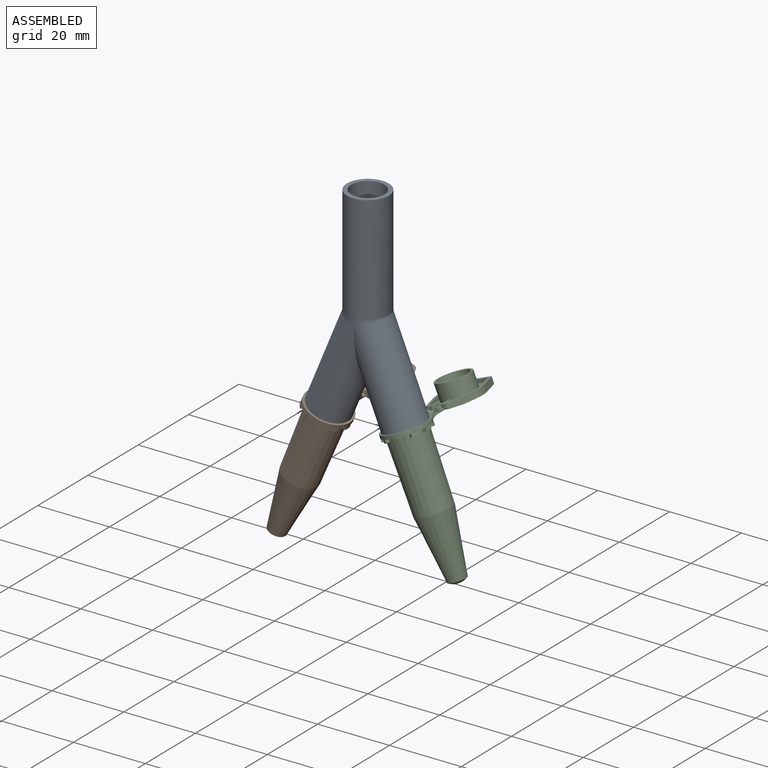
[diagram: assembled view]
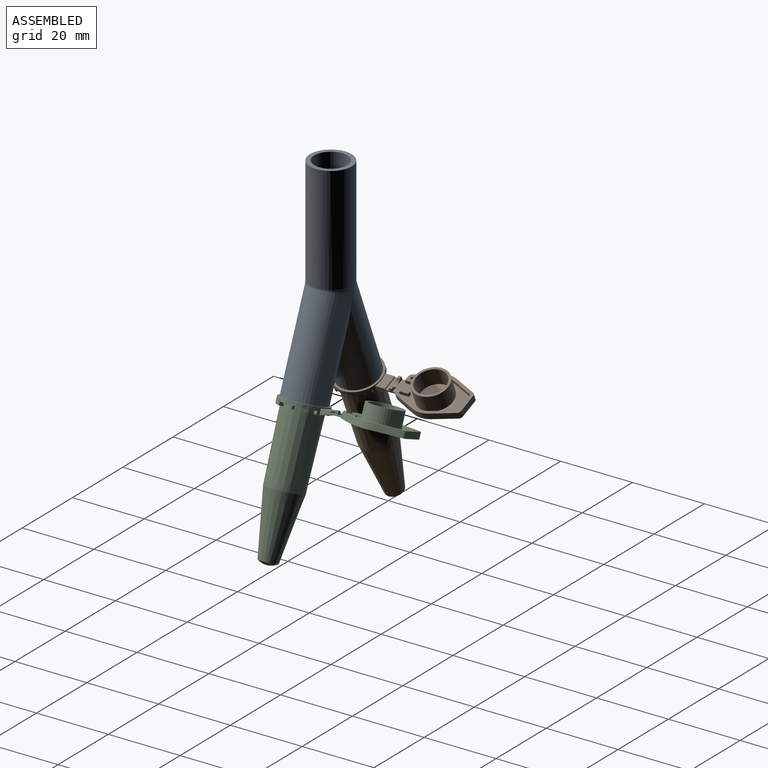
[diagram: assembled view, second angle]
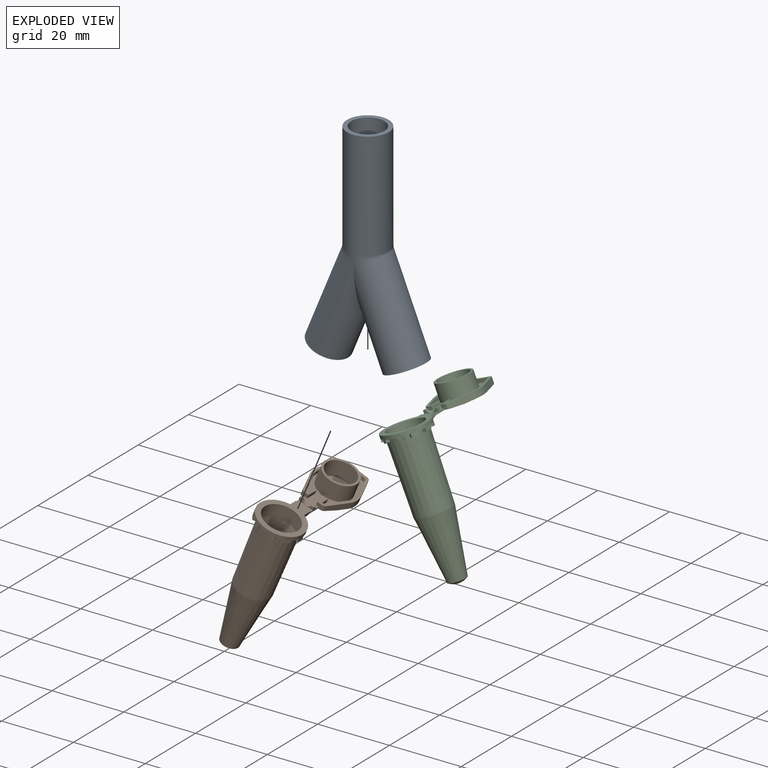
[diagram: exploded view]
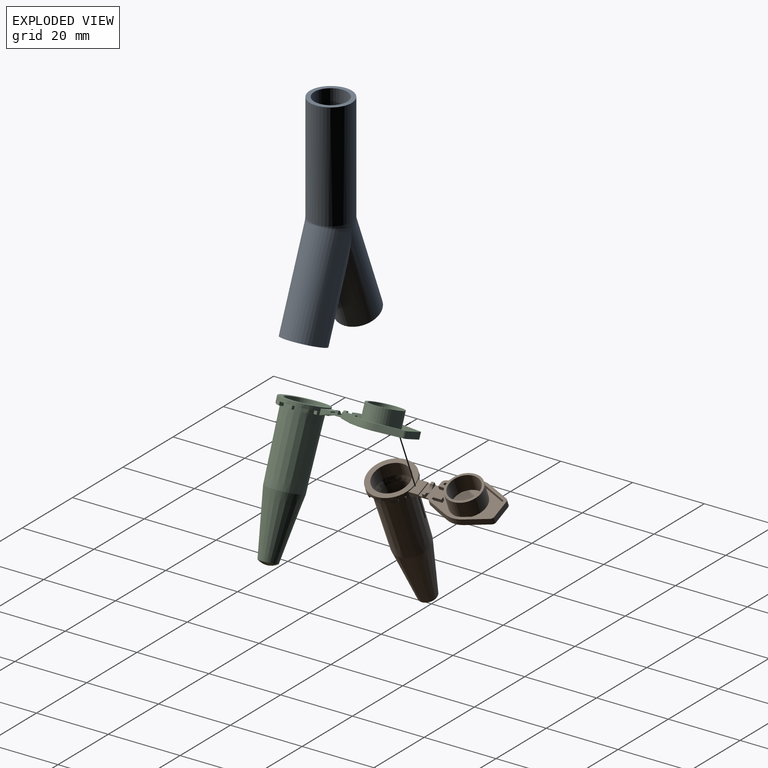
[diagram: exploded view, second angle]
ASSEMBLY  parts=3 mates=2
PART A: 21 faces, bbox 32.5x11.6x59.8 mm
  f0: sphere r=6.99mm, area 71.7mm2, adj f2,f20
  f1: sphere r=4.65mm, area 116.3mm2, adj f16,f20
  f2: cylinder r=4.62mm len=15.61mm, axis (-0.38,0,-0.92), area 379.5mm2, adj f0,f13
  f3: sphere r=6.99mm, area 71.7mm2, adj f5,f19
  f4: sphere r=4.65mm, area 116.3mm2, adj f7,f19
  f5: cylinder r=4.62mm len=15.61mm, axis (0.38,0,-0.92), area 379.5mm2, adj f3,f9
  f6: cylinder r=4.62mm len=30mm, axis (0,0,-1), area 870.8mm2, adj f8,f17,f18
  f7: cylinder r=4.62mm len=12.62mm, axis (0.38,0,-0.92), area 200.9mm2, adj f4,f16,f18
  f8: plane 11.64x11.64mm, normal (0,0,1), area 39.4mm2, adj f6,f10
  f9: plane 11.64x10.75mm, normal (0.38,0,-0.92), area 39.4mm2, adj f5,f12
  f10: cylinder r=5.82mm len=30mm, axis (0,0,-1), area 1097mm2, adj f8,f11,f15
  f11: torus R=6.62mm, axis (0,-1,0), area 21.9mm2, adj f10,f12,f15
  f12: cylinder r=5.82mm len=29.45mm, axis (0.38,0,-0.92), area 849.3mm2, adj f9,f11,f14
  f13: plane 11.64x10.75mm, normal (-0.38,0,-0.92), area 39.4mm2, adj f2,f14
  f14: cylinder r=5.82mm len=29.45mm, axis (-0.38,0,-0.92), area 849.3mm2, adj f12,f13,f15
  f15: torus R=6.62mm, axis (0,1,0), area 21.9mm2, adj f10,f11,f14
  f16: cylinder r=4.62mm len=12.62mm, axis (-0.38,0,-0.92), area 200.9mm2, adj f1,f7,f17
  f17: torus R=6.62mm, axis (0,1,0), area 21.9mm2, adj f6,f16,f18
  f18: torus R=6.62mm, axis (0,-1,0), area 21.9mm2, adj f6,f7,f17
  f19: cylinder r=1.24mm len=2.98mm, axis (-0.38,0,0.92), area 14mm2, adj f3,f4
  f20: cylinder r=1.24mm len=2.98mm, axis (0.38,0,0.92), area 14mm2, adj f0,f1
PART B: 116 faces, bbox 36.9x12.8x42.8 mm
  f0: plane 18.87x11.1mm, normal (0,0,1), area 74.1mm2, adj f1,f3,f65,f66,f75,f78,f93,f96
  f1: plane 1.4x1.25mm, normal (-1,0,0), area 1.4mm2, adj f0,f65,f87,f91,f114,f115
  f2: plane 0.82x0.78mm, normal (0,0,1), area 0.6mm2, adj f3,f65,f76,f77
  f3: plane 2.15x0.9mm, normal (1,0,0), area 1mm2, adj f0,f2,f65,f77
  f4: plane 2.15x0.9mm, normal (-1,0,0), area 1mm2, adj f66,f67,f74,f77
  f5: plane 7x4.3mm, normal (0,0,-1), area 23.5mm2, adj f17,f18,f51,f57,f65,f66,f70,f71
  f6: plane 1.96x1.52mm, normal (0,0,-1), area 1.9mm2, adj f17,f18,f27,f59
  f7: plane 2x1.85mm, normal (0,0,-1), area 1.9mm2, adj f17,f18,f55,f61
  f8: plane 2x1.85mm, normal (0,0,-1), area 1.9mm2, adj f17,f18,f47,f53
  f9: plane 1.96x1.52mm, normal (0,0,-1), area 1.9mm2, adj f17,f18,f43,f49
  f10: plane 1.96x1.52mm, normal (0,0,-1), area 1.9mm2, adj f17,f18,f39,f45
  f11: plane 2x1.85mm, normal (0,0,-1), area 1.9mm2, adj f17,f18,f36,f41
  f12: plane 3.8x1.32mm, normal (0,0,-1), area 3.8mm2, adj f17,f18,f63,f64
  f13: plane 2x1.85mm, normal (0,0,-1), area 1.9mm2, adj f17,f18,f29,f34
  f14: plane 1.96x1.52mm, normal (0,0,-1), area 1.9mm2, adj f17,f18,f25,f31
  f15: sphere r=4.1mm, area 21.9mm2, adj f19
  f16: plane 12.81x12.81mm, normal (0,0,1), area 52.5mm2, adj f17,f20
  f17: cylinder r=6.41mm len=12.81mm, axis (0,0,-1), area 52.2mm2, adj f5,f6,f7,f8,f9,f10,f11,f12
  f18: cone r=5.33mm half-angle=0.9deg, axis (0,0,1), area 643.6mm2, adj f5,f6,f7,f8,f9,f10,f11,f12
  f19: cone r=5mm half-angle=8.4deg, axis (0,0,1), area 403.7mm2, adj f15,f18
  f20: cylinder r=4.93mm len=9.86mm, axis (0,0,-1), area 117.7mm2, adj f16,f21
  f21: cone r=4.93mm half-angle=10.4deg, axis (0,0,1), area 54.8mm2, adj f20,f22
  f22: cone r=4.6mm half-angle=1.4deg, axis (0,0,1), area 406mm2, adj f21,f23
  f23: cone r=4.25mm half-angle=8.1deg, axis (0,0,1), area 315.3mm2, adj f22,f24
  f24: sphere r=2.02mm, area 22mm2, adj f23
  f25: plane 1.1x0.93mm, normal (-1,0,0), area 1mm2, adj f14,f17,f26,f28
  f26: cylinder r=5.33mm len=1.95mm, axis (0,0,1), area 1.8mm2, adj f18,f25,f27,f28
  f27: plane 1.1x0.93mm, normal (1,0,0), area 1mm2, adj f6,f17,f26,f28
  f28: plane 1.95x1.17mm, normal (0,0,-1), area 2.1mm2, adj f17,f25,f26,f27
  f29: plane 0.93x0.89mm, normal (-0.81,0.59,0), area 1mm2, adj f13,f17,f30,f32
  f30: cylinder r=5.33mm len=1.58mm, axis (0,0,1), area 1.8mm2, adj f18,f29,f31,f32
  f31: plane 0.93x0.89mm, normal (0.81,-0.59,0), area 1mm2, adj f14,f17,f30,f32
  f32: plane 2.22x2.03mm, normal (0,0,-1), area 2.1mm2, adj f17,f29,f30,f31
  f33: cylinder r=5.33mm len=0.98mm, axis (0,0,1), area 1mm2, adj f18,f34,f35,f64
  f34: plane 1.04x0.93mm, normal (0.31,-0.95,0), area 1mm2, adj f13,f17,f33,f35
  f35: plane 1.44x1.32mm, normal (0,0,-1), area 1.1mm2, adj f17,f33,f34,f64
  f36: plane 1.04x0.93mm, normal (0.31,0.95,0), area 1mm2, adj f11,f17,f37,f38
  f37: cylinder r=5.33mm len=0.98mm, axis (0,0,1), area 1mm2, adj f18,f36,f38,f63
  f38: plane 1.44x1.32mm, normal (0,0,-1), area 1.1mm2, adj f17,f36,f37,f63
  f39: plane 0.93x0.89mm, normal (0.81,0.59,0), area 1mm2, adj f10,f17,f40,f42
  f40: cylinder r=5.33mm len=1.58mm, axis (0,0,1), area 1.8mm2, adj f18,f39,f41,f42
  f41: plane 0.93x0.89mm, normal (-0.81,-0.59,0), area 1mm2, adj f11,f17,f40,f42
  f42: plane 2.22x2.03mm, normal (0,0,-1), area 2.1mm2, adj f17,f39,f40,f41
  f43: plane 1.1x0.93mm, normal (1,0,0), area 1mm2, adj f9,f17,f44,f46
  f44: cylinder r=5.33mm len=1.95mm, axis (0,0,1), area 1.8mm2, adj f18,f43,f45,f46
  f45: plane 1.1x0.93mm, normal (-1,0,0), area 1mm2, adj f10,f17,f44,f46
  f46: plane 1.95x1.17mm, normal (0,0,-1), area 2.1mm2, adj f17,f43,f44,f45
  f47: plane 0.93x0.89mm, normal (0.81,-0.59,0), area 1mm2, adj f8,f17,f48,f50
  f48: cylinder r=5.33mm len=1.58mm, axis (0,0,1), area 1.8mm2, adj f18,f47,f49,f50
  f49: plane 0.93x0.89mm, normal (-0.81,0.59,0), area 1mm2, adj f9,f17,f48,f50
  f50: plane 2.22x2.03mm, normal (0,0,-1), area 2.1mm2, adj f17,f47,f48,f49
  f51: plane 1.04x0.93mm, normal (0.31,-0.95,0), area 1mm2, adj f5,f17,f52,f54
  f52: cylinder r=5.33mm len=1.85mm, axis (0,0,1), area 1.8mm2, adj f18,f51,f53,f54
  f53: plane 1.04x0.93mm, normal (-0.31,0.95,0), area 1mm2, adj f8,f17,f52,f54
  f54: plane 2.19x1.64mm, normal (0,0,-1), area 2.1mm2, adj f17,f51,f52,f53
  f55: plane 1.04x0.93mm, normal (-0.31,-0.95,0), area 1mm2, adj f7,f17,f56,f58
  f56: cylinder r=5.33mm len=1.85mm, axis (0,0,1), area 1.8mm2, adj f18,f55,f57,f58
  f57: plane 1.04x0.93mm, normal (0.31,0.95,0), area 1mm2, adj f5,f17,f56,f58
  f58: plane 2.19x1.64mm, normal (0,0,-1), area 2.1mm2, adj f17,f55,f56,f57
  f59: plane 0.93x0.89mm, normal (-0.81,-0.59,0), area 1mm2, adj f6,f17,f60,f62
  f60: cylinder r=5.33mm len=1.58mm, axis (0,0,1), area 1.8mm2, adj f18,f59,f61,f62
  f61: plane 0.93x0.89mm, normal (0.81,0.59,0), area 1mm2, adj f7,f17,f60,f62
  f62: plane 2.22x2.03mm, normal (0,0,-1), area 2.1mm2, adj f17,f59,f60,f61
  f63: plane 1.03x0.93mm, normal (-0.31,-0.95,0), area 1mm2, adj f12,f17,f37,f38
  f64: plane 1.03x0.93mm, normal (-0.31,0.95,0), area 1mm2, adj f12,f17,f33,f35
  f65: plane 6.25x2.23mm, normal (0,-1,0), area 5.3mm2, adj f0,f1,f2,f3,f5,f17,f67,f68
  f66: plane 6.25x2.23mm, normal (0,1,0), area 5.3mm2, adj f0,f4,f5,f17,f67,f68,f69,f70
  f67: plane 4.3x1.16mm, normal (0,0,1), area 5mm2, adj f4,f65,f66,f69,f76
  f68: plane 4.3x2.75mm, normal (0,0,1), area 10.8mm2, adj f17,f65,f66,f69
  f69: plane 4.3x0.3mm, normal (1,0,0), area 1.3mm2, adj f65,f66,f67,f68
  f70: plane 2.76x0.93mm, normal (0.32,0,-0.95), area 2.2mm2, adj f5,f17,f66,f71
  f71: plane 2.52x0.85mm, normal (0,-1,0), area 1.1mm2, adj f5,f17,f70
  f72: plane 2.76x0.93mm, normal (0.32,0,-0.95), area 2.2mm2, adj f5,f17,f65,f73
  f73: plane 2.52x0.85mm, normal (0,1,0), area 1.1mm2, adj f5,f17,f72
  f74: plane 0.82x0.78mm, normal (0,0,1), area 0.6mm2, adj f4,f66,f75,f77
  f75: plane 2.15x0.9mm, normal (1,0,0), area 1mm2, adj f0,f66,f74,f77
  f76: plane 2.15x0.9mm, normal (-1,0,0), area 1mm2, adj f2,f65,f67,f77
  f77: cylinder r=1.5mm len=2.75mm, axis (1,0,0), area 2.9mm2, adj f2,f3,f4,f74,f75,f76
  f78: plane 1.4x1.25mm, normal (-1,0,0), area 1.4mm2, adj f0,f66,f87,f90,f96,f115
  f79: plane 6.09x2.44mm, normal (-0.37,0.93,0), area 11.2mm2, adj f80,f86,f87,f90,f115
  f80: cylinder r=6.4mm len=4.76mm, axis (0,0,1), area 8.8mm2, adj f79,f81,f86,f115
  f81: plane 6.09x2.44mm, normal (0.37,0.93,0), area 11.8mm2, adj f80,f86,f88,f115
  f82: plane 5.15x1.8mm, normal (1,0,0), area 9.3mm2, adj f86,f88,f89,f115
  f83: plane 6.09x2.44mm, normal (0.37,-0.93,0), area 11.8mm2, adj f84,f86,f89,f115
  f84: cylinder r=6.4mm len=4.76mm, axis (0,0,1), area 8.8mm2, adj f83,f85,f86,f115
  f85: plane 6.09x2.44mm, normal (-0.37,-0.93,0), area 11.2mm2, adj f84,f86,f87,f91,f115
  f86: plane 14.2x12.8mm, normal (0,0,-1), area 150.4mm2, adj f79,f80,f81,f82,f83,f84,f85,f87
  f87: plane 9.7x4mm, normal (-0.1,0,-1), area 32.4mm2, adj f1,f5,f78,f79,f85,f86,f90,f91
  f88: cylinder r=1mm len=1.8mm, axis (0,0,1), area 2.1mm2, adj f81,f82,f86,f115
  f89: cylinder r=1mm len=1.8mm, axis (0,0,1), area 2.1mm2, adj f82,f83,f86,f115
  f90: cylinder r=1mm len=1.46mm, axis (0,0,1), area 1.7mm2, adj f78,f79,f87,f115
  f91: cylinder r=1mm len=1.46mm, axis (0,0,1), area 1.7mm2, adj f1,f85,f87,f115
  f92: plane 9.6x9.6mm, normal (0,0,1), area 18.3mm2, adj f93,f94
  f93: cylinder r=4.8mm len=9.6mm, axis (0,0,-1), area 144.8mm2, adj f0,f92
  f94: cylinder r=4.15mm len=8.3mm, axis (0,0,-1), area 125.2mm2, adj f92,f95
  f95: plane 8.3x8.3mm, normal (0,0,1), area 54.1mm2, adj f94
  f96: plane 3.15x1mm, normal (0,-1,0), area 3.2mm2, adj f0,f78,f97,f115
  f97: plane 1x0.85mm, normal (1,0,0), area 0.9mm2, adj f0,f96,f98,f115
  f98: plane 2.3x1mm, normal (0,1,0), area 2.3mm2, adj f0,f97,f99,f115
  f99: plane 1x0.4mm, normal (1,0,0), area 0.4mm2, adj f0,f98,f100,f115
  f100: cylinder r=0.15mm len=1mm, axis (0,0,-1), area 0.2mm2, adj f0,f99,f101,f115
  f101: plane 6.09x2.44mm, normal (0.37,-0.93,0), area 6.6mm2, adj f0,f100,f102,f115
  f102: cylinder r=5.55mm len=4.13mm, axis (0,0,-1), area 4.2mm2, adj f0,f101,f103,f115
  f103: plane 6.09x2.44mm, normal (-0.37,-0.93,0), area 6.6mm2, adj f0,f102,f104,f115
  f104: cylinder r=0.15mm len=1mm, axis (0,0,-1), area 0.2mm2, adj f0,f103,f105,f115
  f105: plane 5.15x1mm, normal (-1,0,0), area 5.1mm2, adj f0,f104,f106,f115
  f106: cylinder r=0.15mm len=1mm, axis (0,0,-1), area 0.2mm2, adj f0,f105,f107,f115
  f107: plane 6.09x2.44mm, normal (-0.37,0.93,0), area 6.6mm2, adj f0,f106,f108,f115
  f108: cylinder r=5.55mm len=4.13mm, axis (0,0,-1), area 4.2mm2, adj f0,f107,f109,f115
  f109: plane 6.09x2.44mm, normal (0.37,0.93,0), area 6.6mm2, adj f0,f108,f110,f115
  f110: cylinder r=0.15mm len=1mm, axis (0,0,-1), area 0.2mm2, adj f0,f109,f111,f115
  f111: plane 1x0.4mm, normal (1,0,0), area 0.4mm2, adj f0,f110,f112,f115
  f112: plane 2.3x1mm, normal (0,-1,0), area 2.3mm2, adj f0,f111,f113,f115
  f113: plane 1x0.85mm, normal (1,0,0), area 0.9mm2, adj f0,f112,f114,f115
  f114: plane 3.15x1mm, normal (0,1,0), area 3.2mm2, adj f0,f1,f113,f115
  f115: plane 18.2x12.8mm, normal (0,0,1), area 42.8mm2, adj f1,f78,f79,f80,f81,f82,f83,f84
PART C: same geometry as B
PLACE A at identity
PLACE B rot(axis=(0.19,0.19,0.96),92.2deg) t=(-25.65,0,-93.23)mm
PLACE C rot(axis=(-0.19,-0.19,0.96),92.2deg) t=(25.26,0,-92.31)mm
MATE fastened A.f19 <-> C.f17  axis (0.38,0,-0.92) through (10.86,0,-57.53)mm
MATE fastened B.f20 <-> A.f20  axis (-0.38,0,-0.92) through (-10.86,0,-57.53)mm
